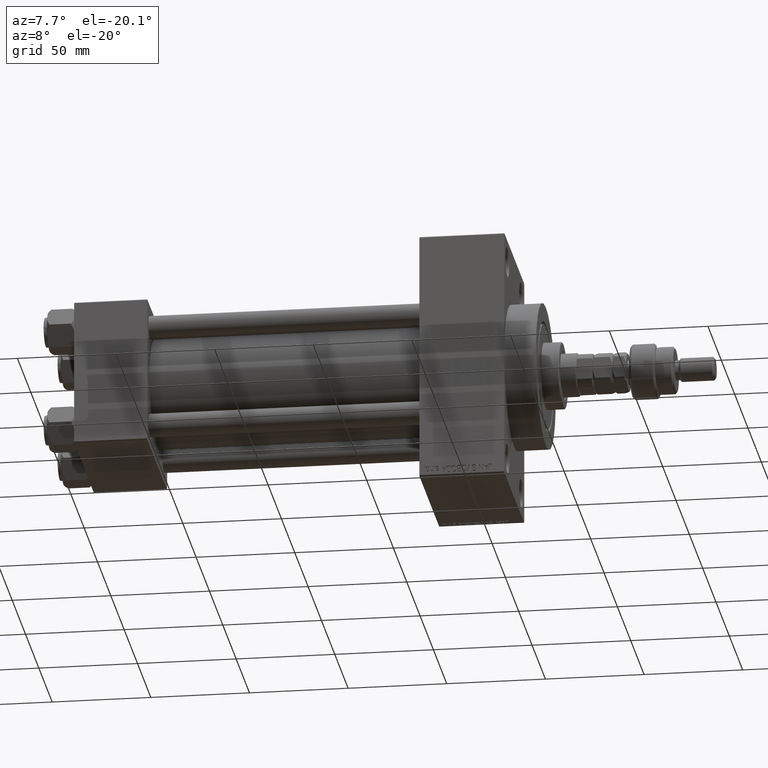
[diagram: clean part render]
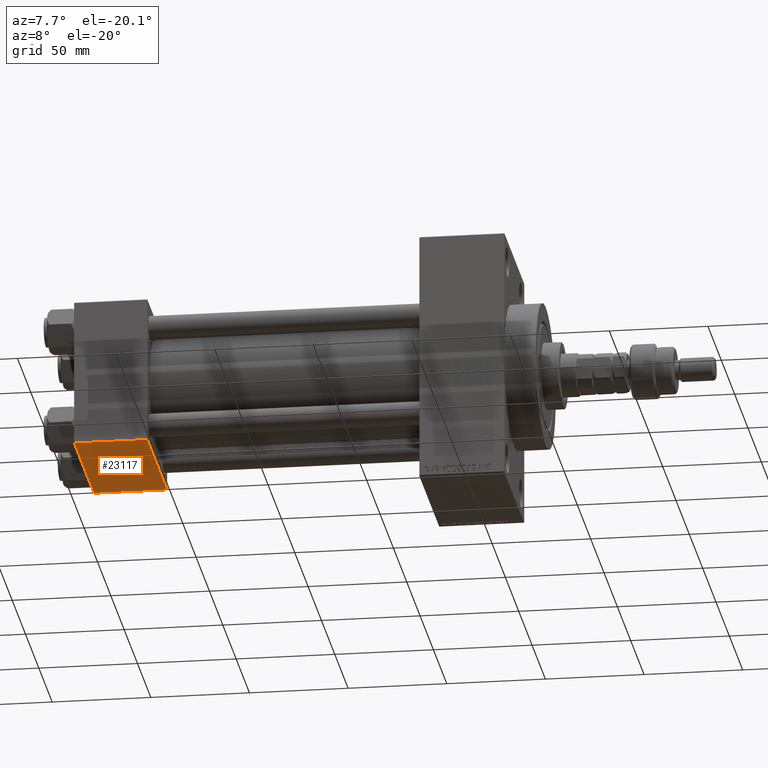
[diagram: same view with one face highlighted and labeled with its STEP entity id]
A machine part, auxiliary view. The second image highlights one B-rep face of the part: STEP entity #23117.
In plain terms, the highlighted planar face has unit normal (0, 0, -1).
Its self-contained STEP definition (entity closure, byte-faithful):
#2125 = EDGE_CURVE ( 'NONE', #38431, #18982, #15524, .T. ) ;
#2656 = VECTOR ( 'NONE', #14166, 1000.000000000000000 ) ;
#2830 = EDGE_LOOP ( 'NONE', ( #24612, #31263, #40907, #26400 ) ) ;
#3853 = DIRECTION ( 'NONE',  ( 0.000000000000000000, -1.000000000000000000, -9.251858538542972814E-17 ) ) ;
#4750 = VECTOR ( 'NONE', #3853, 1000.000000000000000 ) ;
#7513 = PLANE ( 'NONE',  #31207 ) ;
#9110 = LINE ( 'NONE', #33964, #2656 ) ;
#11122 = LINE ( 'NONE', #37522, #18193 ) ;
#11571 = DIRECTION ( 'NONE',  ( 0.000000000000000000, 1.000000000000000000, 9.251858538542972814E-17 ) ) ;
#14166 = DIRECTION ( 'NONE',  ( -1.000000000000000000, 0.000000000000000000, 0.000000000000000000 ) ) ;
#15128 = FACE_OUTER_BOUND ( 'NONE', #2830, .T. ) ;
#15524 = LINE ( 'NONE', #22402, #4750 ) ;
#15728 = CARTESIAN_POINT ( 'NONE',  ( 37.00000000000000000, 36.99999999999997868, -37.50000000000000000 ) ) ;
#18193 = VECTOR ( 'NONE', #45416, 1000.000000000000000 ) ;
#18570 = EDGE_CURVE ( 'NONE', #18982, #34167, #9110, .T. ) ;
#18982 = VERTEX_POINT ( 'NONE', #33904 ) ;
#20648 = LINE ( 'NONE', #25239, #36269 ) ;
#21416 = DIRECTION ( 'NONE',  ( 1.000000000000000000, 0.000000000000000000, 0.000000000000000000 ) ) ;
#22402 = CARTESIAN_POINT ( 'NONE',  ( 37.00000000000000000, 37.49999999999999289, -37.50000000000000000 ) ) ;
#23117 = ADVANCED_FACE ( 'NONE', ( #15128 ), #7513, .T. ) ;
#24612 = ORIENTED_EDGE ( 'NONE', *, *, #39522, .F. ) ;
#25239 = CARTESIAN_POINT ( 'NONE',  ( 37.00000000000000000, 36.99999999999997868, -37.50000000000000000 ) ) ;
#26400 = ORIENTED_EDGE ( 'NONE', *, *, #18570, .T. ) ;
#30234 = EDGE_CURVE ( 'NONE', #46560, #38431, #20648, .T. ) ;
#31207 = AXIS2_PLACEMENT_3D ( 'NONE', #34675, #38479, #11571 ) ;
#31263 = ORIENTED_EDGE ( 'NONE', *, *, #30234, .T. ) ;
#33904 = CARTESIAN_POINT ( 'NONE',  ( 37.00000000000000000, -37.00000000000002132, -37.50000000000000711 ) ) ;
#33964 = CARTESIAN_POINT ( 'NONE',  ( 0.000000000000000000, -37.00000000000002132, -37.50000000000000711 ) ) ;
#34167 = VERTEX_POINT ( 'NONE', #39637 ) ;
#34675 = CARTESIAN_POINT ( 'NONE',  ( 37.00000000000000000, 37.49999999999999289, -37.50000000000000000 ) ) ;
#36269 = VECTOR ( 'NONE', #21416, 1000.000000000000000 ) ;
#37522 = CARTESIAN_POINT ( 'NONE',  ( 0.000000000000000000, 37.49999999999999289, -37.50000000000000000 ) ) ;
#38431 = VERTEX_POINT ( 'NONE', #15728 ) ;
#38479 = DIRECTION ( 'NONE',  ( 0.000000000000000000, 9.251858538542972814E-17, -1.000000000000000000 ) ) ;
#39522 = EDGE_CURVE ( 'NONE', #46560, #34167, #11122, .T. ) ;
#39637 = CARTESIAN_POINT ( 'NONE',  ( 0.000000000000000000, -37.00000000000002132, -37.50000000000000711 ) ) ;
#40795 = CARTESIAN_POINT ( 'NONE',  ( 0.000000000000000000, 36.99999999999997868, -37.50000000000000000 ) ) ;
#40907 = ORIENTED_EDGE ( 'NONE', *, *, #2125, .T. ) ;
#45416 = DIRECTION ( 'NONE',  ( 0.000000000000000000, -1.000000000000000000, -9.251858538542972814E-17 ) ) ;
#46560 = VERTEX_POINT ( 'NONE', #40795 ) ;